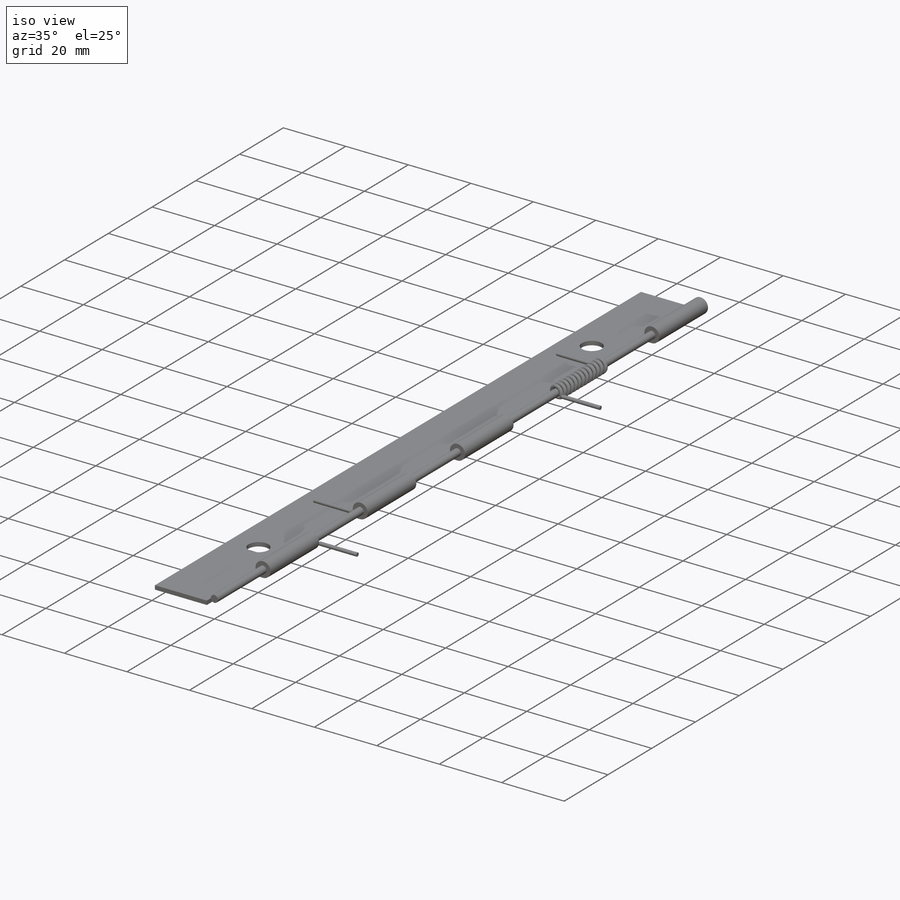
[diagram: iso view]
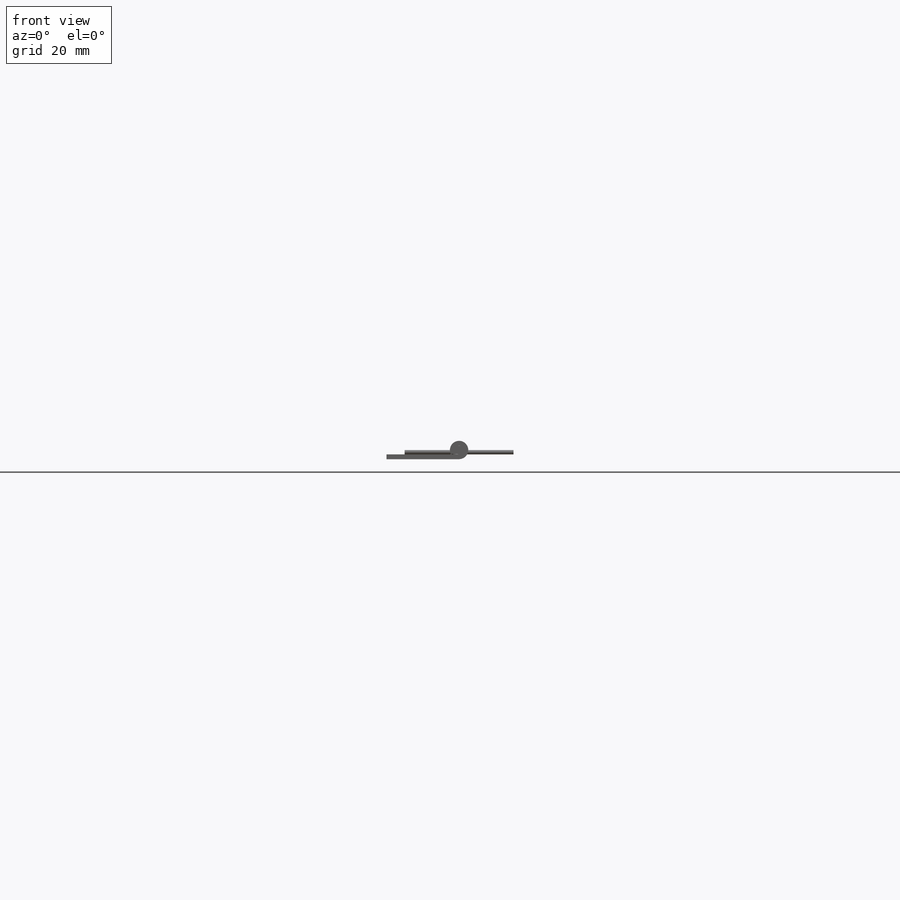
[diagram: front view]
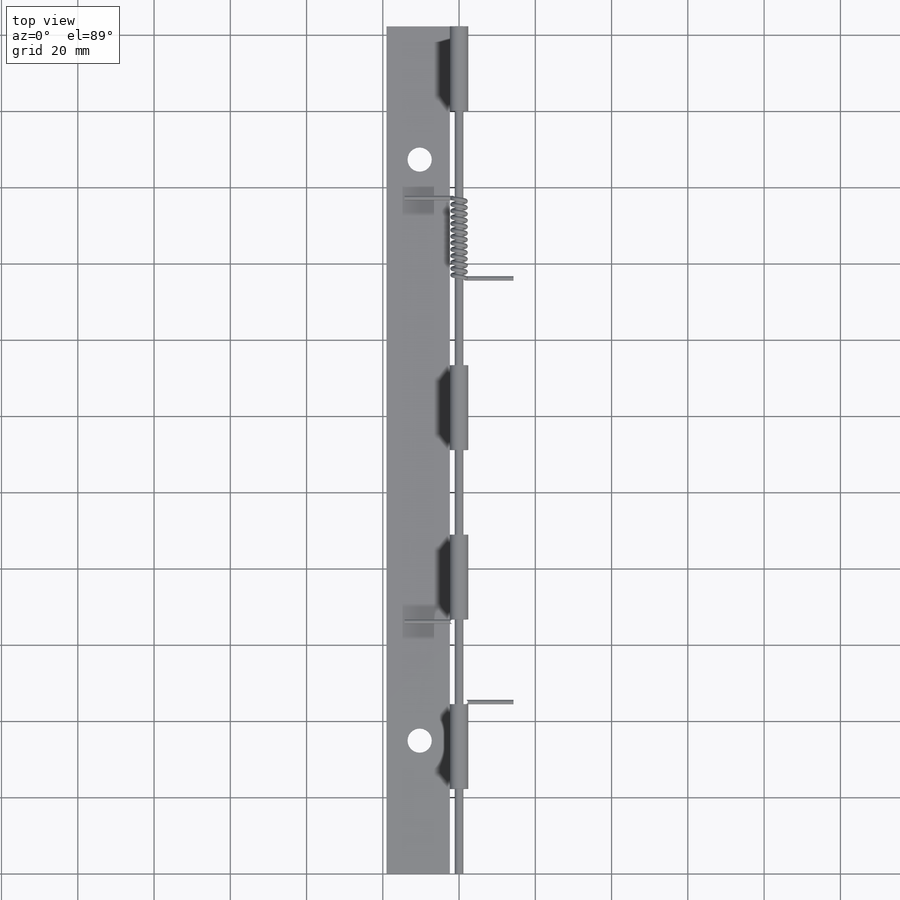
[diagram: top view]
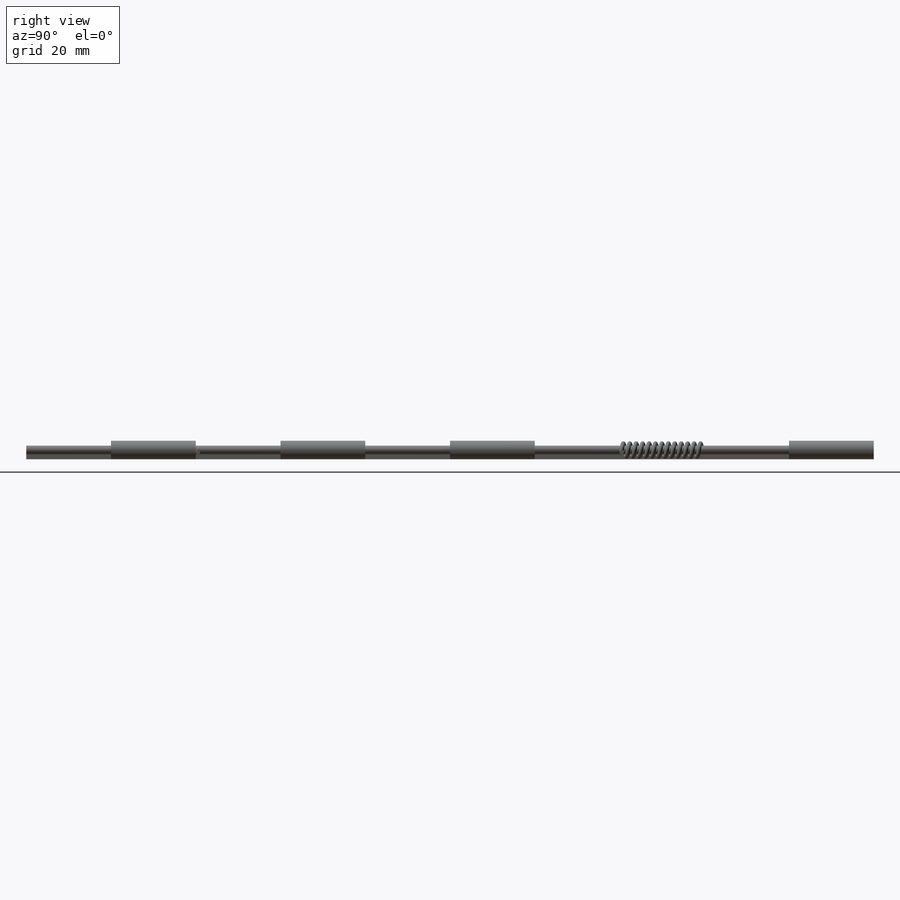
[diagram: right view]
SOLIDWORKS PART (.sldprt)
format: sldprt  version: not decoded by parser v0  size: 1,328,128 bytes
history: native  units: mm
features: sketch x19, plane x6, extrude x3, cut_extrude x3, sweep x3, hole x2, material x1, helix x1, boolean_combine x1, pattern_linear x1 (+15 scaffold rows collapsed; 1 parser-record rows omitted)
feature tree (56):
  scaffold x15  (default folders/planes/origin — collapsed)
  material  "Material <not specified>"
  sketch  "Sketch1"  dims[Pin Dia=2.286mm Thickness=1.27mm Open Wd=38.1mm D1=0.127mm D2=4.826mm]
  extrude  "Extrude1"  Depth=222.25mm
  sketch  "Sketch2"  dims[c1.D2=1.27mm c1.D1=12.7mm c2.D2=12.7mm c2.D1=22.225mm c2.D3=88.9mm]
  cut_extrude  "Cut-Extrude1"  [1 undecoded]
  sketch  "Sketch3"
  extrude  "Extrude2"  [1 undecoded]
  sketch  "Sketch4"
  cut_extrude  "Cut-Extrude2"  [1 undecoded]
  sketch  "Sketch5"
  extrude  "Extrude3"  [1 undecoded]
  sketch  "Sketch15"  dims[D1=1.143mm D2=111.125mm D3=21.082mm]
  plane  "Plane4"
  sketch  "Sketch6"  dims[D1=1.27mm]
  plane  "Plane5"
  sketch  "Sketch9"
  helix  "Helix/Spiral2"  Pitch=21.082mm
  plane  "Plane7"
  sketch  "Sketch16"  dims[D2=1.143mm D1=1.7145mm]
  sweep  "Sweep7"
  sketch  "Sketch22"  dims[D1=0.0mm]
  plane  "Plane8"
  sketch  "Sketch23"  dims[c1.D2=1.524mm c1.D1=0.5715mm c2.D2=14.2875mm]
  sweep  "Sweep11"
  sketch  "Sketch24"  dims[D1=0.0mm]
  plane  "Plane9"
  sketch  "Sketch25"
  sweep  "Sweep12"
  boolean_combine  "Combine1"
  pattern_linear  "LPattern1"  Count1=2 Count2=1 Spacing1=111.125mm Spacing2=50mm
  plane  "Plane6"
  sketch  "Sketch13"  dims[c1.D1=6.35mm c1.H1=63.5mm c1.H2=22.225mm c2.H1=152.4mm c2.H2=12.7mm c2.H3=30.1625mm c2.D1=30.1625mm c2.D2=20.6375mm c3.D1=8.7122mm]
  parser-record x1  (decoder bookkeeping rows leaked as tree rows — omitted from the tree; the rows remain in map.json)
  hole  "1/4" (0.250) Diameter Hole1"  Diameter=6.35mm Depth=2.156557mm
  sketch  "3DSketch1"
  sketch  "Sketch14"  dims[hole-wizard template sketch: 60 standard entries collapsed; hole parameters kept: c18.Thru Hole Depth=~2.156557mm]
  hole  "#10 (0.1935) Diameter Hole1"  Diameter=4.9149mm Depth=2.159mm
  sketch  "3DSketch2"
  sketch  "Sketch27"  dims[hole-wizard template sketch: 47 standard entries collapsed; hole parameters kept: c15.Hole Depth=2.159mm c15.D3=~14.816244mm c15.Drill Angle=118.0deg]
  sketch  "Sketch26"  dims[c1.D1=~38.231905mm c2.D1=~20.002233deg]
  cut_extrude  "Cut-Extrude3"  [1 undecoded]
decode coverage: 17 of 33 modeling features carry decoded parameters
note: ~ marks probable driven/reference dimensions
note: 5 parameter values undecoded
summary: no parameter record found for 5 features
note: suppression state not decoded; provenance and decode notes live in map.json
